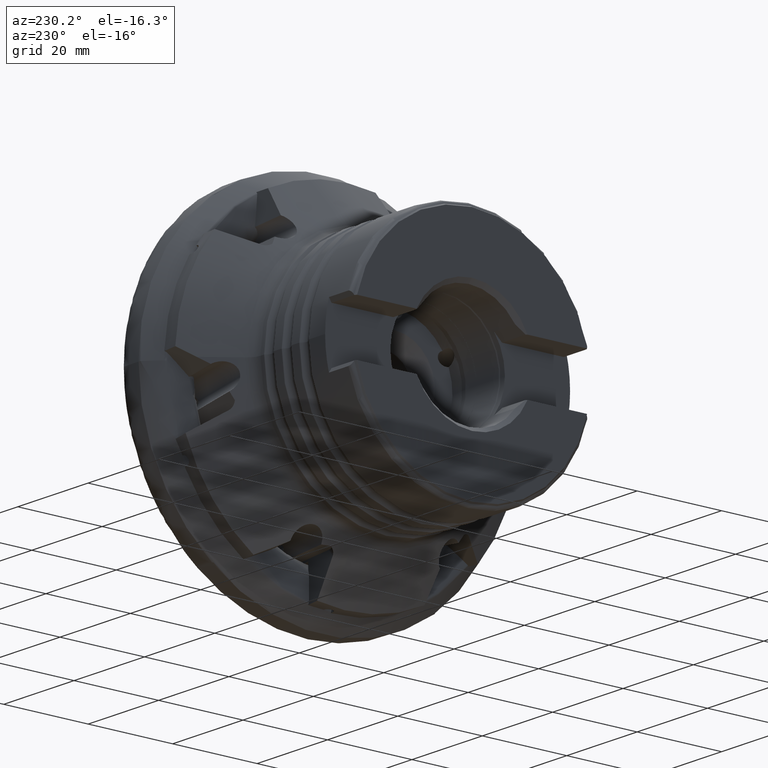
[diagram: clean part render]
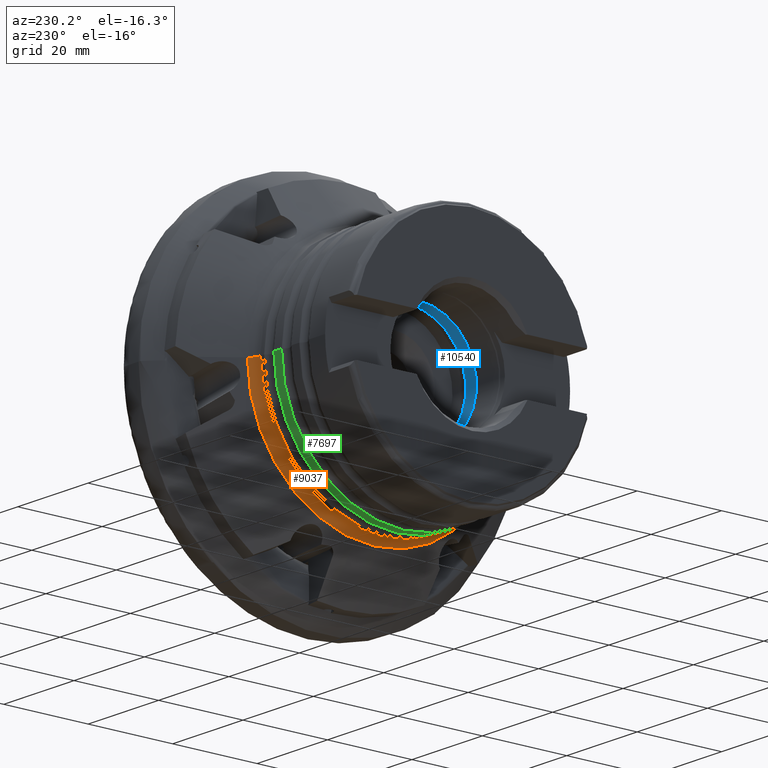
[diagram: same view with three faces highlighted in distinct colors, each labeled with its STEP entity id]
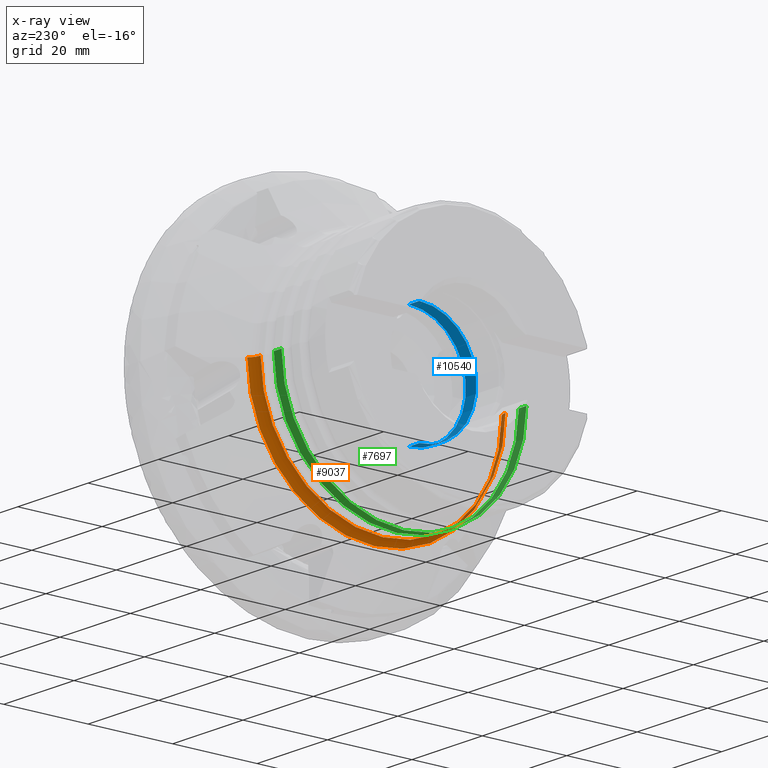
[diagram: x-ray of the same camera — body ghosted, the three highlighted faces saturated]
A machine part, auxiliary view with three faces highlighted in distinct colors.
The next image is the same camera in x-ray (body ghosted, the three faces saturated) — at least one of them is partly hidden behind the body in this view.
Their STEP definitions:

[orange] entity #9037 — the highlighted toroidal blend (fillet) surface has major radius 32 mm and minor (blend) radius 3 mm.
#187 = VERTEX_POINT ( 'NONE', #9917 ) ;
#509 = DIRECTION ( 'NONE',  ( -1.000000000000000000, 0.0000000000000000000, 0.0000000000000000000 ) ) ;
#691 = VERTEX_POINT ( 'NONE', #13090 ) ;
#852 = VERTEX_POINT ( 'NONE', #994 ) ;
#994 = CARTESIAN_POINT ( 'NONE',  ( -21.43421174296403800, 30.15796290571253700, 0.0000000000000000000 ) ) ;
#1118 = DIRECTION ( 'NONE',  ( -1.499759782661858200E-032, 1.224646799147353200E-016, 1.000000000000000000 ) ) ;
#1173 = ORIENTED_EDGE ( 'NONE', *, *, #13147, .T. ) ;
#1492 = CARTESIAN_POINT ( 'NONE',  ( -21.43421174296403500, -2.624933880326752800E-015, 0.0000000000000000000 ) ) ;
#1579 = CIRCLE ( 'NONE', #7244, 3.000000000000002700 ) ;
#1696 = VERTEX_POINT ( 'NONE', #9865 ) ;
#2508 = DIRECTION ( 'NONE',  ( -1.150424835656399400E-016, 1.000000000000000000, 0.0000000000000000000 ) ) ;
#2644 = ORIENTED_EDGE ( 'NONE', *, *, #6761, .T. ) ;
#2749 = DIRECTION ( 'NONE',  ( 1.000000000000000000, 1.224646799147353700E-016, -0.0000000000000000000 ) ) ;
#2920 = CARTESIAN_POINT ( 'NONE',  ( -23.80210095981294000, -2.914916675341707200E-015, 0.0000000000000000000 ) ) ;
#3381 = TOROIDAL_SURFACE ( 'NONE', #10060, 31.99999999999991800, 3.000000000000003600 ) ;
#3802 = AXIS2_PLACEMENT_3D ( 'NONE', #12659, #6586, #509 ) ;
#3847 = EDGE_LOOP ( 'NONE', ( #7512, #1173, #2644, #11969 ) ) ;
#3959 = DIRECTION ( 'NONE',  ( -1.196361017915042700E-016, 1.000000000000000000, 0.0000000000000000000 ) ) ;
#4699 = CIRCLE ( 'NONE', #3802, 3.000000000000002700 ) ;
#4790 = DIRECTION ( 'NONE',  ( -1.224646799147353700E-016, 1.000000000000000000, 0.0000000000000000000 ) ) ;
#5706 = FACE_OUTER_BOUND ( 'NONE', #3847, .T. ) ;
#6201 = CIRCLE ( 'NONE', #6613, 30.15796290571254400 ) ;
#6563 = EDGE_CURVE ( 'NONE', #852, #691, #4699, .T. ) ;
#6586 = DIRECTION ( 'NONE',  ( -0.0000000000000000000, 0.0000000000000000000, -1.000000000000000000 ) ) ;
#6613 = AXIS2_PLACEMENT_3D ( 'NONE', #1492, #8460, #2508 ) ;
#6761 = EDGE_CURVE ( 'Kante61', #1696, #691, #11125, .T. ) ;
#7117 = CARTESIAN_POINT ( 'NONE',  ( -23.80210095981293600, -31.99999999999991800, 3.918869757271520000E-015 ) ) ;
#7143 = EDGE_CURVE ( 'Kante60', #187, #852, #6201, .T. ) ;
#7244 = AXIS2_PLACEMENT_3D ( 'NONE', #7117, #1118, #8110 ) ;
#7512 = ORIENTED_EDGE ( 'NONE', *, *, #7143, .F. ) ;
#8110 = DIRECTION ( 'NONE',  ( 0.0000000000000000000, -1.000000000000000000, 1.224646799147354400E-016 ) ) ;
#8176 = AXIS2_PLACEMENT_3D ( 'NONE', #2920, #9902, #3959 ) ;
#8460 = DIRECTION ( 'NONE',  ( 1.000000000000000000, 1.224646799147353700E-016, -0.0000000000000000000 ) ) ;
#8701 = CARTESIAN_POINT ( 'NONE',  ( -23.80210095981294000, 0.0000000000000000000, 0.0000000000000000000 ) ) ;
#9037 = ADVANCED_FACE ( 'NONE', ( #5706 ), #3381, .F. ) ;
#9865 = CARTESIAN_POINT ( 'NONE',  ( -23.80210095981293600, -28.99999999999992500, 3.551475717527315000E-015 ) ) ;
#9902 = DIRECTION ( 'NONE',  ( 1.000000000000000000, 1.224646799147353700E-016, -0.0000000000000000000 ) ) ;
#9917 = CARTESIAN_POINT ( 'NONE',  ( -21.43421174296403100, -30.15796290571254400, 3.693285274128547500E-015 ) ) ;
#10060 = AXIS2_PLACEMENT_3D ( 'NONE', #8701, #2749, #4790 ) ;
#11125 = CIRCLE ( 'NONE', #8176, 28.99999999999991800 ) ;
#11969 = ORIENTED_EDGE ( 'NONE', *, *, #6563, .F. ) ;
#12659 = CARTESIAN_POINT ( 'NONE',  ( -23.80210095981294300, 31.99999999999991800, 0.0000000000000000000 ) ) ;
#13090 = CARTESIAN_POINT ( 'NONE',  ( -23.80210095981294300, 28.99999999999991500, 0.0000000000000000000 ) ) ;
#13147 = EDGE_CURVE ( 'NONE', #187, #1696, #1579, .T. ) ;

[blue] entity #10540 — the highlighted cylindrical surface (partial cylindrical patch) has radius 13.475 mm, axis along (1, -0, -0).
#72 = CARTESIAN_POINT ( 'NONE',  ( -8.673617379884035500E-016, 0.0000000000000000000, -13.47499999999999400 ) ) ;
#1160 = CARTESIAN_POINT ( 'NONE',  ( -34.14999999999999900, 0.0000000000000000000, -13.47499999999999400 ) ) ;
#1385 = LINE ( 'NONE', #72, #11822 ) ;
#1720 = EDGE_CURVE ( 'NONE', #9957, #8223, #7033, .T. ) ;
#1743 = EDGE_CURVE ( 'NONE', #4875, #7461, #12437, .T. ) ;
#1829 = EDGE_CURVE ( 'NONE', #7461, #8223, #1385, .T. ) ;
#2861 = CARTESIAN_POINT ( 'NONE',  ( -8.673617379884035500E-016, 1.650211561851057700E-015, 13.47499999999999400 ) ) ;
#2930 = CARTESIAN_POINT ( 'NONE',  ( -31.15000000000000200, 1.650211561851057700E-015, 13.47499999999999400 ) ) ;
#3026 = DIRECTION ( 'NONE',  ( 0.0000000000000000000, 0.0000000000000000000, -1.000000000000000000 ) ) ;
#3182 = CARTESIAN_POINT ( 'NONE',  ( -31.15000000000000200, 0.0000000000000000000, -13.47499999999999400 ) ) ;
#3801 = CARTESIAN_POINT ( 'NONE',  ( -34.14999999999999900, 1.650211561851057700E-015, 13.47499999999999400 ) ) ;
#3890 = DIRECTION ( 'NONE',  ( 1.000000000000000000, -0.0000000000000000000, -0.0000000000000000000 ) ) ;
#4623 = VECTOR ( 'NONE', #3890, 1000.000000000000000 ) ;
#4704 = ORIENTED_EDGE ( 'NONE', *, *, #1743, .F. ) ;
#4875 = VERTEX_POINT ( 'NONE', #3801 ) ;
#4997 = CARTESIAN_POINT ( 'NONE',  ( -8.673617379884035500E-016, 0.0000000000000000000, 0.0000000000000000000 ) ) ;
#6625 = CYLINDRICAL_SURFACE ( 'NONE', #12931, 13.47499999999999400 ) ;
#7033 = CIRCLE ( 'NONE', #10804, 13.47499999999999400 ) ;
#7461 = VERTEX_POINT ( 'NONE', #1160 ) ;
#7586 = DIRECTION ( 'NONE',  ( 0.0000000000000000000, 0.0000000000000000000, -1.000000000000000000 ) ) ;
#8223 = VERTEX_POINT ( 'NONE', #3182 ) ;
#8367 = CARTESIAN_POINT ( 'NONE',  ( -34.14999999999999900, 0.0000000000000000000, 0.0000000000000000000 ) ) ;
#8676 = DIRECTION ( 'NONE',  ( 0.0000000000000000000, 0.0000000000000000000, 1.000000000000000000 ) ) ;
#8976 = DIRECTION ( 'NONE',  ( 1.000000000000000000, -0.0000000000000000000, -0.0000000000000000000 ) ) ;
#9263 = FACE_OUTER_BOUND ( 'NONE', #10610, .T. ) ;
#9387 = ORIENTED_EDGE ( 'NONE', *, *, #1720, .T. ) ;
#9836 = DIRECTION ( 'NONE',  ( 1.000000000000000000, -0.0000000000000000000, -0.0000000000000000000 ) ) ;
#9957 = VERTEX_POINT ( 'NONE', #2930 ) ;
#10209 = DIRECTION ( 'NONE',  ( 1.000000000000000000, -0.0000000000000000000, -0.0000000000000000000 ) ) ;
#10479 = ORIENTED_EDGE ( 'NONE', *, *, #11327, .T. ) ;
#10540 = ADVANCED_FACE ( 'NONE', ( #9263 ), #6625, .F. ) ;
#10610 = EDGE_LOOP ( 'NONE', ( #4704, #10479, #9387, #10941 ) ) ;
#10804 = AXIS2_PLACEMENT_3D ( 'NONE', #10874, #11403, #7586 ) ;
#10874 = CARTESIAN_POINT ( 'NONE',  ( -31.15000000000000200, 0.0000000000000000000, 0.0000000000000000000 ) ) ;
#10941 = ORIENTED_EDGE ( 'NONE', *, *, #1829, .F. ) ;
#11327 = EDGE_CURVE ( 'NONE', #4875, #9957, #12646, .T. ) ;
#11403 = DIRECTION ( 'NONE',  ( 1.000000000000000000, -0.0000000000000000000, -0.0000000000000000000 ) ) ;
#11822 = VECTOR ( 'NONE', #9836, 1000.000000000000000 ) ;
#12204 = AXIS2_PLACEMENT_3D ( 'NONE', #8367, #10209, #8676 ) ;
#12437 = CIRCLE ( 'NONE', #12204, 13.47499999999999400 ) ;
#12646 = LINE ( 'NONE', #2861, #4623 ) ;
#12931 = AXIS2_PLACEMENT_3D ( 'NONE', #4997, #8976, #3026 ) ;

[green] entity #7697 — the highlighted cylindrical surface (partial cylindrical patch) has radius 29 mm, axis along (1, 0, -0).
#155 = LINE ( 'NONE', #13122, #10258 ) ;
#529 = CARTESIAN_POINT ( 'NONE',  ( -29.74021278201284300, 28.99999999999990800, 0.0000000000000000000 ) ) ;
#594 = CARTESIAN_POINT ( 'NONE',  ( -27.55978721798717900, -28.99999999999991800, 3.551475717527314200E-015 ) ) ;
#728 = LINE ( 'NONE', #1805, #8114 ) ;
#1030 = DIRECTION ( 'NONE',  ( 1.000000000000000000, 1.224646799147353700E-016, -0.0000000000000000000 ) ) ;
#1094 = ORIENTED_EDGE ( 'NONE', *, *, #9217, .T. ) ;
#1278 = EDGE_CURVE ( 'NONE', #1508, #9085, #728, .T. ) ;
#1439 = CARTESIAN_POINT ( 'NONE',  ( -27.55978721798718200, -3.375100520169015700E-015, 0.0000000000000000000 ) ) ;
#1508 = VERTEX_POINT ( 'NONE', #529 ) ;
#1646 = ORIENTED_EDGE ( 'NONE', *, *, #1278, .T. ) ;
#1805 = CARTESIAN_POINT ( 'NONE',  ( -3.551475717527315700E-015, 28.99999999999991500, 0.0000000000000000000 ) ) ;
#2460 = DIRECTION ( 'NONE',  ( -1.196361017915042900E-016, 1.000000000000000000, 0.0000000000000000000 ) ) ;
#3522 = CIRCLE ( 'NONE', #12749, 28.99999999999991500 ) ;
#3772 = DIRECTION ( 'NONE',  ( 1.000000000000000000, 1.224646799147353700E-016, -0.0000000000000000000 ) ) ;
#5121 = CYLINDRICAL_SURFACE ( 'NONE', #5444, 28.99999999999991500 ) ;
#5186 = DIRECTION ( 'NONE',  ( 1.000000000000000000, 1.224646799147353700E-016, -0.0000000000000000000 ) ) ;
#5265 = DIRECTION ( 'NONE',  ( 1.000000000000000000, 1.224646799147353700E-016, -0.0000000000000000000 ) ) ;
#5444 = AXIS2_PLACEMENT_3D ( 'NONE', #12348, #5265, #9211 ) ;
#5457 = VERTEX_POINT ( 'NONE', #594 ) ;
#5850 = CIRCLE ( 'NONE', #7116, 28.99999999999991100 ) ;
#5883 = CARTESIAN_POINT ( 'NONE',  ( -27.55978721798718600, 28.99999999999991100, 0.0000000000000000000 ) ) ;
#6852 = ORIENTED_EDGE ( 'NONE', *, *, #10085, .F. ) ;
#7116 = AXIS2_PLACEMENT_3D ( 'NONE', #11230, #5186, #12261 ) ;
#7615 = VERTEX_POINT ( 'NONE', #10545 ) ;
#7697 = ADVANCED_FACE ( 'NONE', ( #13168 ), #5121, .T. ) ;
#8114 = VECTOR ( 'NONE', #3772, 1000.000000000000000 ) ;
#8148 = EDGE_CURVE ( 'NONE', #7615, #5457, #155, .T. ) ;
#8415 = DIRECTION ( 'NONE',  ( 1.000000000000000000, 1.224646799147353700E-016, -0.0000000000000000000 ) ) ;
#9085 = VERTEX_POINT ( 'NONE', #5883 ) ;
#9211 = DIRECTION ( 'NONE',  ( -1.224646799147353900E-016, 1.000000000000000000, 0.0000000000000000000 ) ) ;
#9217 = EDGE_CURVE ( 'NONE', #7615, #1508, #5850, .T. ) ;
#9641 = ORIENTED_EDGE ( 'NONE', *, *, #8148, .F. ) ;
#9659 = EDGE_LOOP ( 'NONE', ( #9641, #1094, #1646, #6852 ) ) ;
#10085 = EDGE_CURVE ( 'NONE', #5457, #9085, #3522, .T. ) ;
#10258 = VECTOR ( 'NONE', #1030, 1000.000000000000000 ) ;
#10545 = CARTESIAN_POINT ( 'NONE',  ( -29.74021278201283600, -28.99999999999991500, 3.551475717527314200E-015 ) ) ;
#11230 = CARTESIAN_POINT ( 'NONE',  ( -29.74021278201284000, -3.642125638945323600E-015, 0.0000000000000000000 ) ) ;
#12261 = DIRECTION ( 'NONE',  ( -1.196361017915042900E-016, 1.000000000000000000, 0.0000000000000000000 ) ) ;
#12348 = CARTESIAN_POINT ( 'NONE',  ( 0.0000000000000000000, 0.0000000000000000000, 0.0000000000000000000 ) ) ;
#12749 = AXIS2_PLACEMENT_3D ( 'NONE', #1439, #8415, #2460 ) ;
#13122 = CARTESIAN_POINT ( 'NONE',  ( 3.551475717527315700E-015, -28.99999999999991500, 3.551475717527314200E-015 ) ) ;
#13168 = FACE_OUTER_BOUND ( 'NONE', #9659, .T. ) ;